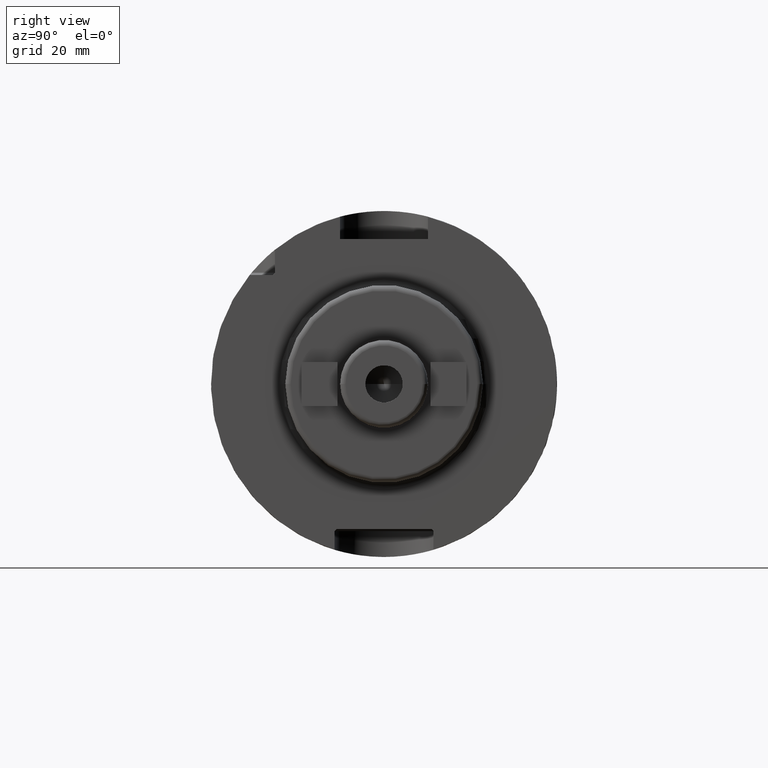
[diagram: clean part render]
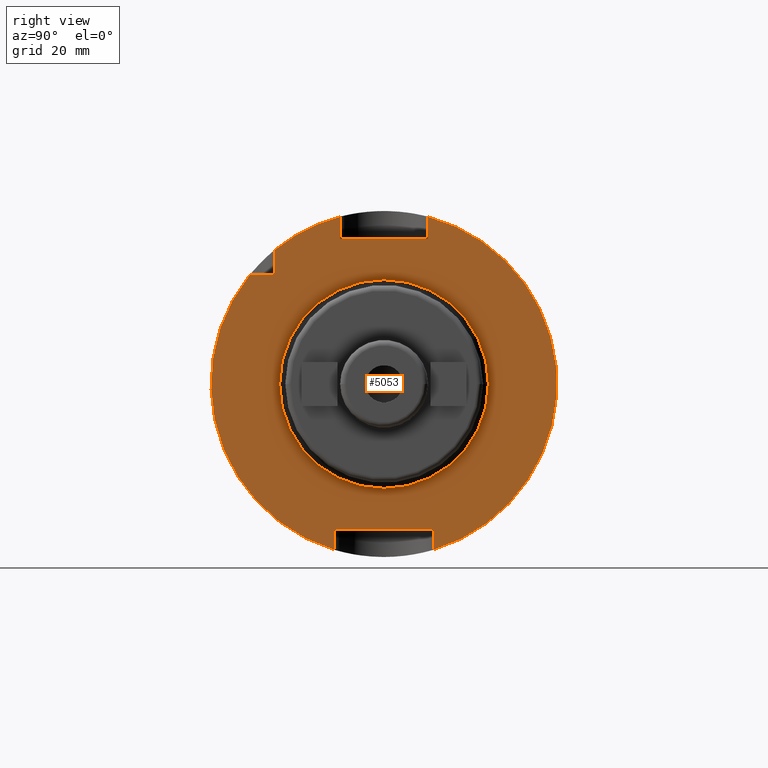
[diagram: same view with one face highlighted and labeled with its STEP entity id]
A machine part, right view. The second image highlights one B-rep face of the part: STEP entity #5053.
In plain terms, the highlighted planar face has unit normal (1, 0, 0).
Its self-contained STEP definition (entity closure, byte-faithful):
#1343=DIRECTION('',(0.E0,7.071067811865E-1,-7.071067811866E-1));
#1344=VECTOR('',#1343,5.656854249492E-1);
#1345=CARTESIAN_POINT('',(2.6E1,8.6175E0,-2.64E1));
#1346=LINE('',#1345,#1344);
#1565=CARTESIAN_POINT('',(2.6E1,0.E0,0.E0));
#1566=DIRECTION('',(1.E0,0.E0,0.E0));
#1567=DIRECTION('',(0.E0,2.862698412698E-1,-9.581490374568E-1));
#1568=AXIS2_PLACEMENT_3D('',#1565,#1566,#1567);
#1574=CARTESIAN_POINT('',(2.6E1,0.E0,0.E0));
#1575=DIRECTION('',(1.E0,0.E0,0.E0));
#1576=DIRECTION('',(0.E0,-7.764663384879E-1,6.301587301587E-1));
#1577=AXIS2_PLACEMENT_3D('',#1574,#1575,#1576);
#1583=CARTESIAN_POINT('',(2.6E1,0.E0,0.E0));
#1584=DIRECTION('',(1.E0,0.E0,0.E0));
#1585=DIRECTION('',(0.E0,-2.545238095238E-1,9.670665077364E-1));
#1586=AXIS2_PLACEMENT_3D('',#1583,#1584,#1585);
#1676=DIRECTION('',(0.E0,1.E0,0.E0));
#1677=VECTOR('',#1676,4.208689662367E0);
#1678=CARTESIAN_POINT('',(2.6E1,-2.445868966237E1,1.985E1));
#1679=LINE('',#1678,#1677);
#1680=DIRECTION('',(0.E0,0.E0,-1.E0));
#1681=VECTOR('',#1680,4.208689662367E0);
#1682=CARTESIAN_POINT('',(2.6E1,-1.985E1,2.445868966237E1));
#1683=LINE('',#1682,#1681);
#1684=DIRECTION('',(0.E0,0.E0,-1.E0));
#1685=VECTOR('',#1684,4.062594993697E0);
#1686=CARTESIAN_POINT('',(2.6E1,-8.0175E0,3.046259499370E1));
#1687=LINE('',#1686,#1685);
#1688=DIRECTION('',(0.E0,1.E0,0.E0));
#1689=VECTOR('',#1688,1.6035E1);
#1690=CARTESIAN_POINT('',(2.6E1,-8.0175E0,2.64E1));
#1691=LINE('',#1690,#1689);
#1692=DIRECTION('',(0.E0,0.E0,-1.E0));
#1693=VECTOR('',#1692,4.062594993697E0);
#1694=CARTESIAN_POINT('',(2.6E1,8.0175E0,3.046259499370E1));
#1695=LINE('',#1694,#1693);
#1696=DIRECTION('',(0.E0,0.E0,1.E0));
#1697=VECTOR('',#1696,3.381694679888E0);
#1698=CARTESIAN_POINT('',(2.6E1,9.0175E0,-3.018169467989E1));
#1699=LINE('',#1698,#1697);
#1700=DIRECTION('',(0.E0,-1.E0,0.E0));
#1701=VECTOR('',#1700,1.7235E1);
#1702=CARTESIAN_POINT('',(2.6E1,8.6175E0,-2.64E1));
#1703=LINE('',#1702,#1701);
#1704=DIRECTION('',(0.E0,0.E0,1.E0));
#1705=VECTOR('',#1704,3.381694679888E0);
#1706=CARTESIAN_POINT('',(2.6E1,-9.0175E0,-3.018169467989E1));
#1707=LINE('',#1706,#1705);
#1708=CARTESIAN_POINT('',(2.6E1,0.E0,0.E0));
#1709=DIRECTION('',(1.E0,0.E0,0.E0));
#1710=DIRECTION('',(0.E0,-1.E0,0.E0));
#1711=AXIS2_PLACEMENT_3D('',#1708,#1709,#1710);
#1713=CARTESIAN_POINT('',(2.6E1,0.E0,0.E0));
#1714=DIRECTION('',(1.E0,0.E0,0.E0));
#1715=DIRECTION('',(0.E0,1.E0,0.E0));
#1716=AXIS2_PLACEMENT_3D('',#1713,#1714,#1715);
#1737=DIRECTION('',(0.E0,-7.071067811865E-1,-7.071067811865E-1));
#1738=VECTOR('',#1737,5.656854249492E-1);
#1739=CARTESIAN_POINT('',(2.6E1,-1.985E1,2.025E1));
#1740=LINE('',#1739,#1738);
#1857=DIRECTION('',(0.E0,7.071067811865E-1,7.071067811865E-1));
#1858=VECTOR('',#1857,5.656854249492E-1);
#1859=CARTESIAN_POINT('',(2.6E1,-9.0175E0,-2.68E1));
#1860=LINE('',#1859,#1858);
#3051=CARTESIAN_POINT('',(2.6E1,8.6175E0,-2.64E1));
#3052=CARTESIAN_POINT('',(2.6E1,9.0175E0,-2.68E1));
#3053=VERTEX_POINT('',#3051);
#3054=VERTEX_POINT('',#3052);
#3055=CARTESIAN_POINT('',(2.6E1,-9.0175E0,-2.68E1));
#3056=CARTESIAN_POINT('',(2.6E1,-8.6175E0,-2.64E1));
#3057=VERTEX_POINT('',#3055);
#3058=VERTEX_POINT('',#3056);
#3073=CARTESIAN_POINT('',(2.6E1,-1.985E1,2.025E1));
#3074=CARTESIAN_POINT('',(2.6E1,-2.025E1,1.985E1));
#3075=VERTEX_POINT('',#3073);
#3076=VERTEX_POINT('',#3074);
#3092=CARTESIAN_POINT('',(2.6E1,-8.0175E0,2.64E1));
#3094=VERTEX_POINT('',#3092);
#3095=CARTESIAN_POINT('',(2.6E1,8.0175E0,2.64E1));
#3097=VERTEX_POINT('',#3095);
#3155=CARTESIAN_POINT('',(2.6E1,9.0175E0,-3.018169467989E1));
#3156=CARTESIAN_POINT('',(2.6E1,8.0175E0,3.046259499370E1));
#3157=VERTEX_POINT('',#3155);
#3158=VERTEX_POINT('',#3156);
#3162=CARTESIAN_POINT('',(2.6E1,-2.445868966237E1,1.985E1));
#3164=VERTEX_POINT('',#3162);
#3166=CARTESIAN_POINT('',(2.6E1,-1.985E1,2.445868966237E1));
#3168=VERTEX_POINT('',#3166);
#3186=CARTESIAN_POINT('',(2.6E1,-8.0175E0,3.046259499370E1));
#3187=VERTEX_POINT('',#3186);
#3188=CARTESIAN_POINT('',(2.6E1,-9.0175E0,-3.018169467989E1));
#3189=VERTEX_POINT('',#3188);
#3190=CARTESIAN_POINT('',(2.6E1,-1.9E1,0.E0));
#3191=CARTESIAN_POINT('',(2.6E1,1.9E1,0.E0));
#3192=VERTEX_POINT('',#3190);
#3193=VERTEX_POINT('',#3191);
#5021=CARTESIAN_POINT('',(2.6E1,0.E0,0.E0));
#5022=DIRECTION('',(1.E0,0.E0,0.E0));
#5023=DIRECTION('',(0.E0,-1.E0,0.E0));
#5024=AXIS2_PLACEMENT_3D('',#5021,#5022,#5023);
#5025=PLANE('',#5024);
#5027=ORIENTED_EDGE('',*,*,#5026,.T.);
#5029=ORIENTED_EDGE('',*,*,#5028,.F.);
#5031=ORIENTED_EDGE('',*,*,#5030,.F.);
#5032=ORIENTED_EDGE('',*,*,#4991,.F.);
#5033=ORIENTED_EDGE('',*,*,#4862,.T.);
#5034=ORIENTED_EDGE('',*,*,#4829,.T.);
#5035=ORIENTED_EDGE('',*,*,#4924,.F.);
#5036=ORIENTED_EDGE('',*,*,#4957,.F.);
#5037=ORIENTED_EDGE('',*,*,#4663,.T.);
#5038=ORIENTED_EDGE('',*,*,#4704,.F.);
#5039=ORIENTED_EDGE('',*,*,#4782,.T.);
#5041=ORIENTED_EDGE('',*,*,#5040,.F.);
#5043=ORIENTED_EDGE('',*,*,#5042,.F.);
#5044=ORIENTED_EDGE('',*,*,#4972,.F.);
#5045=EDGE_LOOP('',(#5027,#5029,#5031,#5032,#5033,#5034,#5035,#5036,#5037,#5038,
#5039,#5041,#5043,#5044));
#5046=FACE_OUTER_BOUND('',#5045,.F.);
#5048=ORIENTED_EDGE('',*,*,#5047,.T.);
#5050=ORIENTED_EDGE('',*,*,#5049,.T.);
#5051=EDGE_LOOP('',(#5048,#5050));
#5052=FACE_BOUND('',#5051,.F.);
#5053=ADVANCED_FACE('',(#5046,#5052),#5025,.T.);
#1569=CIRCLE('',#1568,3.15E1);
#1578=CIRCLE('',#1577,3.15E1);
#1587=CIRCLE('',#1586,3.15E1);
#1712=CIRCLE('',#1711,1.9E1);
#1717=CIRCLE('',#1716,1.9E1);
#4663=EDGE_CURVE('',#3157,#3054,#1699,.T.);
#4704=EDGE_CURVE('',#3053,#3054,#1346,.T.);
#4782=EDGE_CURVE('',#3053,#3058,#1703,.T.);
#4829=EDGE_CURVE('',#3094,#3097,#1691,.T.);
#4862=EDGE_CURVE('',#3187,#3094,#1687,.T.);
#4924=EDGE_CURVE('',#3158,#3097,#1695,.T.);
#4957=EDGE_CURVE('',#3157,#3158,#1569,.T.);
#4972=EDGE_CURVE('',#3164,#3189,#1578,.T.);
#4991=EDGE_CURVE('',#3187,#3168,#1587,.T.);
#5026=EDGE_CURVE('',#3164,#3076,#1679,.T.);
#5028=EDGE_CURVE('',#3075,#3076,#1740,.T.);
#5030=EDGE_CURVE('',#3168,#3075,#1683,.T.);
#5040=EDGE_CURVE('',#3057,#3058,#1860,.T.);
#5042=EDGE_CURVE('',#3189,#3057,#1707,.T.);
#5047=EDGE_CURVE('',#3192,#3193,#1712,.T.);
#5049=EDGE_CURVE('',#3193,#3192,#1717,.T.);